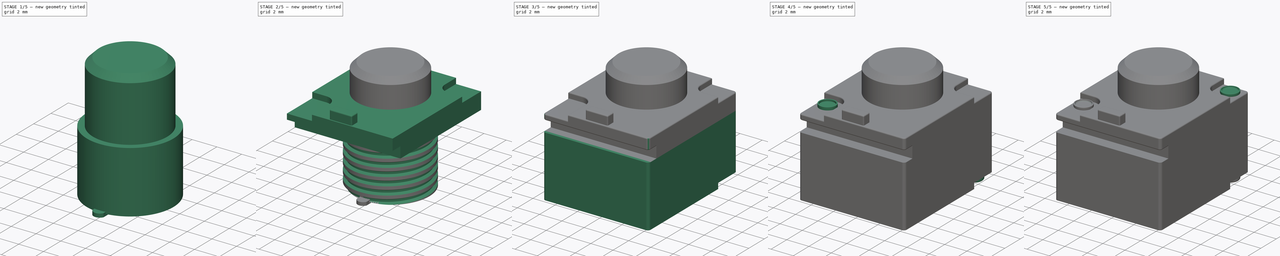
[diagram: build sequence overview — one tinted view per stage of 5, left to right]
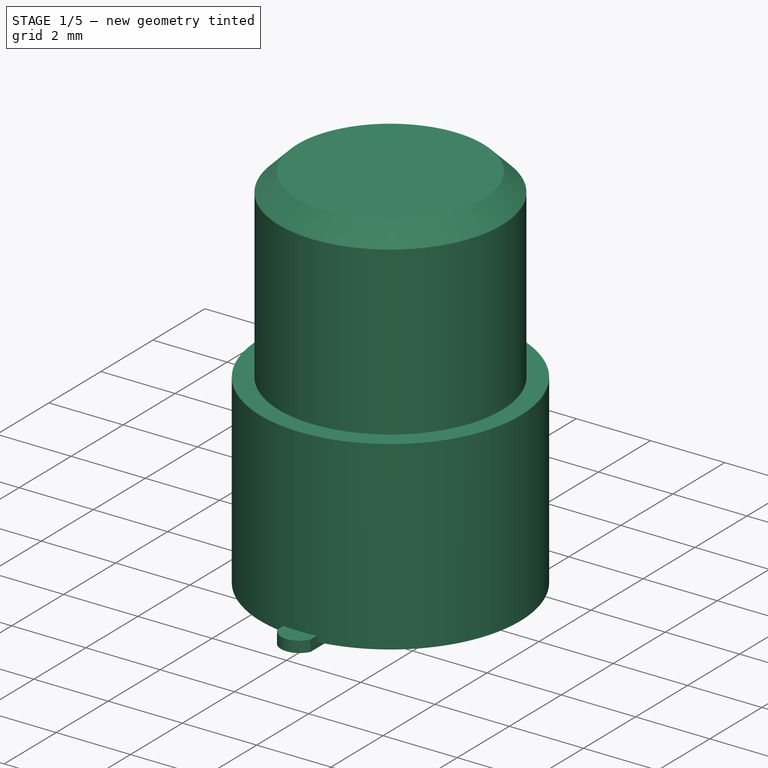
[diagram: stage 1 of 5 — iso view after this stage's code; geometry added in this stage tinted green]
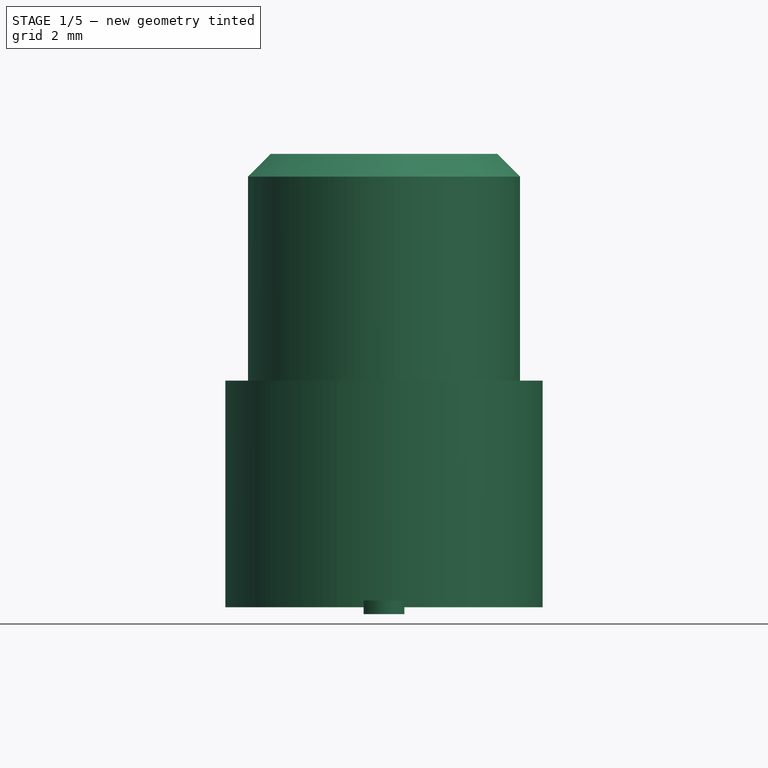
[diagram: stage 1 of 5 — front view after this stage's code; geometry added in this stage tinted green]
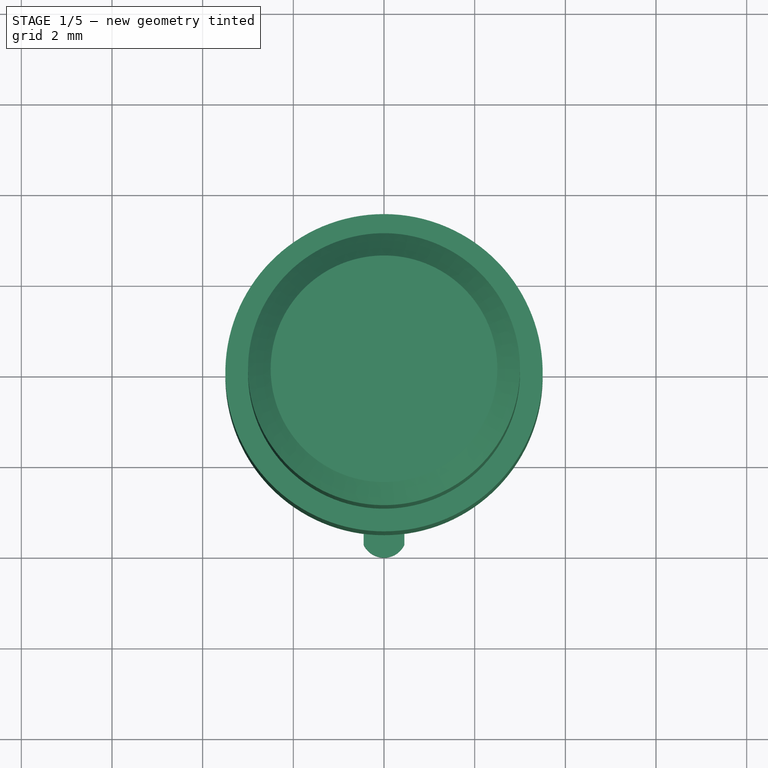
[diagram: stage 1 of 5 — top view after this stage's code; geometry added in this stage tinted green]
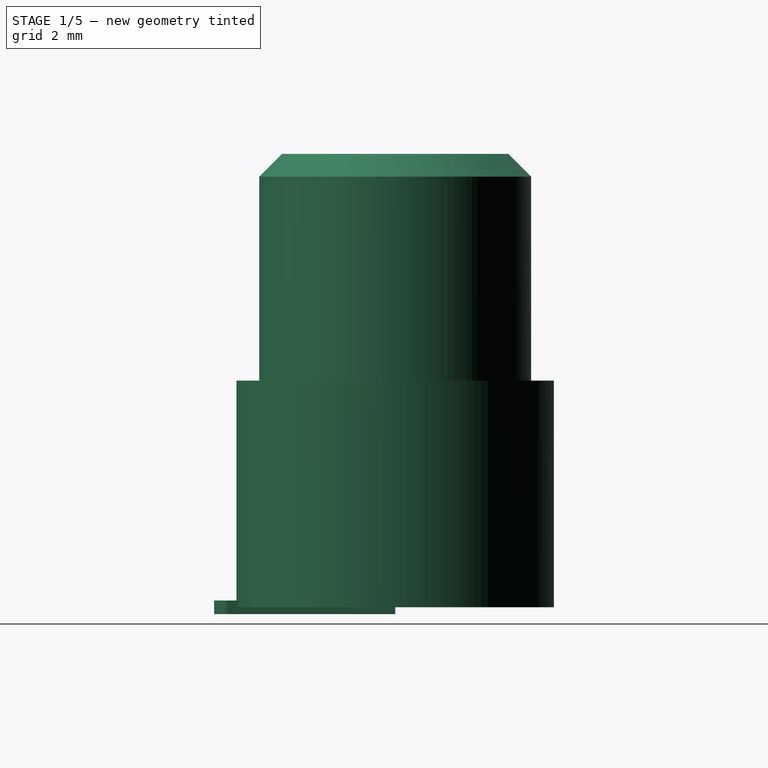
[diagram: stage 1 of 5 — right view after this stage's code; geometry added in this stage tinted green]
FCSTD DOCUMENT  (FreeCAD 0.19R16699 (Git))
Label: RD901F-20-15R
License: All rights reserved
LicenseURL: http://en.wikipedia.org/wiki/All_rights_reserved
objects: Sketcher::SketchObject×17, PartDesign::Pad×13, PartDesign::Body×13, PartDesign::Fillet×11, App::Part×4, PartDesign::Pocket×3, PartDesign::Thickness×2, Part::Helix×1, PartDesign::ShapeBinder×1, PartDesign::SubtractivePipe×1, PartDesign::Chamfer×1
note: 80 computed .brp shape members not serialized (recipe doc carries the construction recipe); baked Part::Feature solids carry a one-line shape summary decoded from their .brp

FEATURE [PartDesign::Body] Body008  label="Tab"
  Group = -> [Sketch014,Pad007,Fillet010]
  Origin = -> Origin008
  Tip = -> Fillet010
FEATURE [App::Part] Part  label="RD901F_Body_z=7.5"
  Group = -> [Body,Body001,Body002,Body004,Body005,Body006,Body007,Body008]
  Origin = -> Origin009
FEATURE [Sketcher::SketchObject] Sketch015
  AttachmentOffset = pos=(0,0,0) rot=(0,0,1;1.5708rad)
  MapMode = 5
  Placement = pos=(0,0,0) rot=(0,0,1;1.5708rad)
  Support = -> [XY_Plane010]
  sketch-geometry (1):
    g0: Circle CenterX=0 CenterY=0 CenterZ=0 NormalX=0 NormalY=0 NormalZ=1 AngleXU=0 Radius=3.5
  constraints (2):
    c: Coincident(g0,g-1)
    c: Radius(g0) = 3.5
FEATURE [PartDesign::Pad] Pad008
  Length = 5
  Length2 = 100
  Profile = -> Sketch015
  Type = 0
FEATURE [PartDesign::Body] Body009  label="Bushing_M7x0.75x5mm"
  Group = -> [Sketch015,Pad008,Sketch001,SubtractivePipe,ReferenceHelix]
  Origin = -> Origin010
  Placement = pos=(0,0,7.5) rot=(0,0,1;0rad)
  Tip = -> SubtractivePipe
FEATURE [App::Part] Part001  label="Bushing_M7x0.75x5"
  Group = -> [Body009,Helix]
  Origin = -> Origin011
FEATURE [Sketcher::SketchObject] Sketch016
  MapMode = 5
  Support = -> [XY_Plane012]
  sketch-geometry (1):
    g0: Circle CenterX=0 CenterY=0 CenterZ=0 NormalX=0 NormalY=0 NormalZ=1 AngleXU=0 Radius=3
  constraints (2):
    c: Coincident(g0,g-1)
    c: Radius(g0) = 3
FEATURE [PartDesign::Pad] Pad009
  Length = 10
  Length2 = 100
  Profile = -> Sketch016
  Type = 0
FEATURE [PartDesign::Chamfer] Chamfer
  Base = -> Pad009 [Edge3]
  BaseFeature = -> Pad009
  Size = 0.5
FEATURE [PartDesign::Body] Body010  label="RD901F_Shaft_15R"
  Group = -> [Sketch016,Pad009,Chamfer]
  Origin = -> Origin012
  Placement = pos=(0,0,12.5) rot=(0,0,1;0rad)
  Tip = -> Chamfer
FEATURE [App::Part] Part002  label="Shaft_Type_15R"
  Group = -> [Body010]
  Origin = -> Origin013
FEATURE [Sketcher::SketchObject] Sketch017
  MapMode = 5
  Support = -> [XY_Plane014]
  sketch-geometry (7):
    g0: ArcOfCircle CenterX=0 CenterY=-3.49746 CenterZ=0 NormalX=0 NormalY=0 NormalZ=1 AngleXU=0 Radius=0.497458 StartAngle=3.58195 EndAngle=5.84283
    g1: LineSegment StartX=-0.45 StartY=-3.70951 StartZ=0 EndX=-0.45 EndY=0 EndZ=0
    g2: LineSegment StartX=0.45 StartY=-3.70951 StartZ=0 EndX=0.45 EndY=0 EndZ=0
    g3: LineSegment StartX=-0.45 StartY=0 StartZ=0 EndX=0.45 EndY=0 EndZ=0
    g4: LineSegment [constr] StartX=0.45 StartY=-3.70951 StartZ=0 EndX=-0.45 EndY=-3.70951 EndZ=0
    g5: GeomPoint X=0 Y=-3 Z=0
    g6: LineSegment [constr] StartX=0 StartY=-3 StartZ=0 EndX=0 EndY=-3.49746 EndZ=0
  constraints (18):
    c: PointOnObject(g0,g-2)
    c: Coincident(g1,g0)
    c: PointOnObject(g1,g-1)
    c: Vertical(g1)
    c: Coincident(g2,g0)
    c: PointOnObject(g2,g-1)
    c: Vertical(g2)
    c: Coincident(g3,g1)
    c: Coincident(g3,g2)
    c: Coincident(g4,g0)
    c: Coincident(g4,g0)
    c: Horizontal(g4)
    c: DistanceX(g3,g3) = 0.9
    c: PointOnObject(g5,g0)
    c: Coincident(g6,g5)
    c: Coincident(g6,g0)
    c: PointOnObject(g5,g-2)
    c: DistanceY(g5,g-1) = 3
FEATURE [PartDesign::Pad] Pad010
  Length = 0.3
  Length2 = 100
  Midplane = true
  Profile = -> Sketch017
  Type = 0
FEATURE [PartDesign::Body] Body011  label="RD901F_Terminals_20_2"
  Group = -> [Sketch017,Pad010]
  Origin = -> Origin014
  Tip = -> Pad010
FEATURE [Sketcher::SketchObject] Sketch018
  MapMode = 5
  Support = -> [XY_Plane015]
  sketch-geometry (7):
    g0: ArcOfCircle CenterX=0 CenterY=-3.49746 CenterZ=0 NormalX=0 NormalY=0 NormalZ=1 AngleXU=0 Radius=0.497458 StartAngle=3.58195 EndAngle=5.84283
    g1: LineSegment StartX=-0.45 StartY=-3.70951 StartZ=0 EndX=-0.45 EndY=0 EndZ=0
    g2: LineSegment StartX=0.45 StartY=-3.70951 StartZ=0 EndX=0.45 EndY=0 EndZ=0
    g3: LineSegment StartX=-0.45 StartY=0 StartZ=0 EndX=0.45 EndY=0 EndZ=0
    g4: LineSegment [constr] StartX=0.45 StartY=-3.70951 StartZ=0 EndX=-0.45 EndY=-3.70951 EndZ=0
    g5: GeomPoint X=0 Y=-3 Z=0
    g6: LineSegment [constr] StartX=0 StartY=-3 StartZ=0 EndX=0 EndY=-3.49746 EndZ=0
  constraints (18):
    c: PointOnObject(g0,g-2)
    c: Coincident(g1,g0)
    c: PointOnObject(g1,g-1)
    c: Vertical(g1)
    c: Coincident(g2,g0)
    c: PointOnObject(g2,g-1)
    c: Vertical(g2)
    c: Coincident(g3,g1)
    c: Coincident(g3,g2)
    c: Coincident(g4,g0)
    c: Coincident(g4,g0)
    c: Horizontal(g4)
    c: DistanceX(g3,g3) = 0.9
    c: PointOnObject(g5,g0)
    c: Coincident(g6,g5)
    c: Coincident(g6,g0)
    c: PointOnObject(g5,g-2)
    c: DistanceY(g5,g-1) = 3
FEATURE [PartDesign::Pad] Pad011
  Length = 0.3
  Length2 = 100
  Midplane = true
  Profile = -> Sketch018
  Type = 0
FEATURE [PartDesign::Body] Body012  label="RD901F_Terminals_20_1"
  Group = -> [Sketch018,Pad011]
  Origin = -> Origin015
  Placement = pos=(-2.5,0,0) rot=(0,0,1;0rad)
  Tip = -> Pad011
FEATURE [Sketcher::SketchObject] Sketch002
  MapMode = 5
  Support = -> [XY_Plane016]
  sketch-geometry (7):
    g0: ArcOfCircle CenterX=0 CenterY=-3.49746 CenterZ=0 NormalX=0 NormalY=0 NormalZ=1 AngleXU=0 Radius=0.497458 StartAngle=3.58195 EndAngle=5.84283
    g1: LineSegment StartX=-0.45 StartY=-3.70951 StartZ=0 EndX=-0.45 EndY=0 EndZ=0
    g2: LineSegment StartX=0.45 StartY=-3.70951 StartZ=0 EndX=0.45 EndY=0 EndZ=0
    g3: LineSegment StartX=-0.45 StartY=0 StartZ=0 EndX=0.45 EndY=0 EndZ=0
    g4: LineSegment [constr] StartX=0.45 StartY=-3.70951 StartZ=0 EndX=-0.45 EndY=-3.70951 EndZ=0
    g5: GeomPoint X=0 Y=-3 Z=0
    g6: LineSegment [constr] StartX=0 StartY=-3 StartZ=0 EndX=0 EndY=-3.49746 EndZ=0
  constraints (18):
    c: PointOnObject(g0,g-2)
    c: Coincident(g1,g0)
    c: PointOnObject(g1,g-1)
    c: Vertical(g1)
    c: Coincident(g2,g0)
    c: PointOnObject(g2,g-1)
    c: Vertical(g2)
    c: Coincident(g3,g1)
    c: Coincident(g3,g2)
    c: Coincident(g4,g0)
    c: Coincident(g4,g0)
    c: Horizontal(g4)
    c: DistanceX(g3,g3) = 0.9
    c: PointOnObject(g5,g0)
    c: Coincident(g6,g5)
    c: Coincident(g6,g0)
    c: PointOnObject(g5,g-2)
    c: DistanceY(g5,g-1) = 3
FEATURE [PartDesign::Pad] Pad012
  Length = 0.3
  Length2 = 100
  Midplane = true
  Profile = -> Sketch002
  Type = 0
FEATURE [PartDesign::Body] Body013  label="RD901F_Terminals_20_3"
  Group = -> [Sketch002,Pad012]
  Origin = -> Origin016
  Placement = pos=(2.5,0,0) rot=(0,0,1;0rad)
  Tip = -> Pad012
FEATURE [App::Part] Part003  label="RD901F_Terminals_20_3x"
  Group = -> [Body013,Body012,Body011]
  Origin = -> Origin003
  Placement = pos=(0,-6.5,2.25) rot=(0,0,1;0rad)
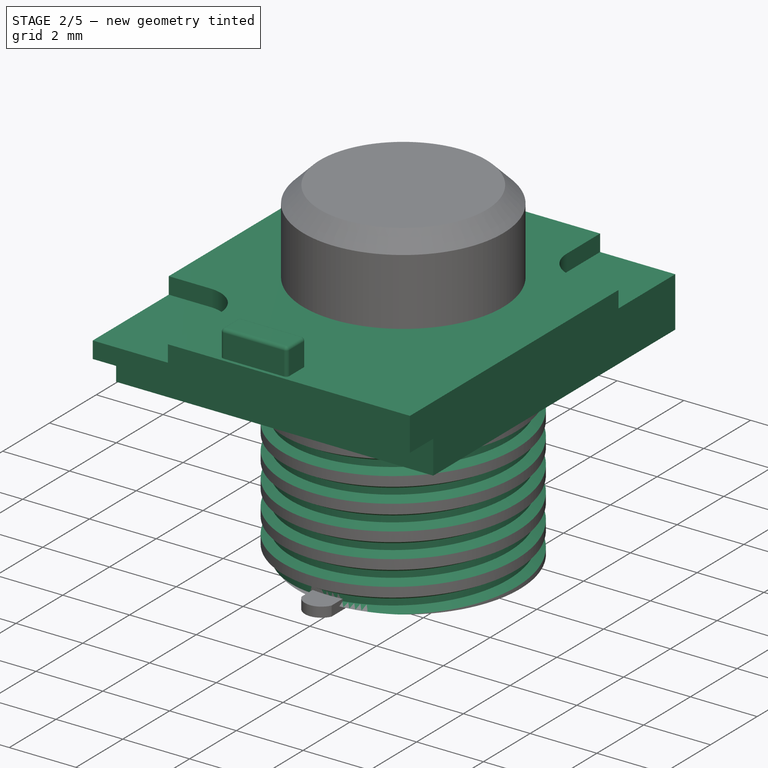
[diagram: stage 2 of 5 — iso view after this stage's code; geometry added in this stage tinted green]
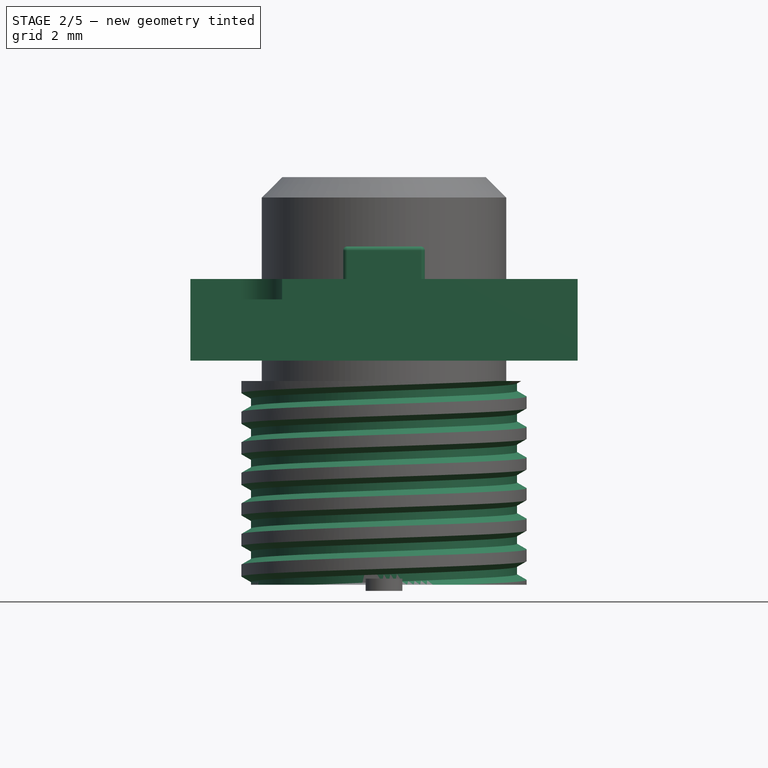
[diagram: stage 2 of 5 — front view after this stage's code; geometry added in this stage tinted green]
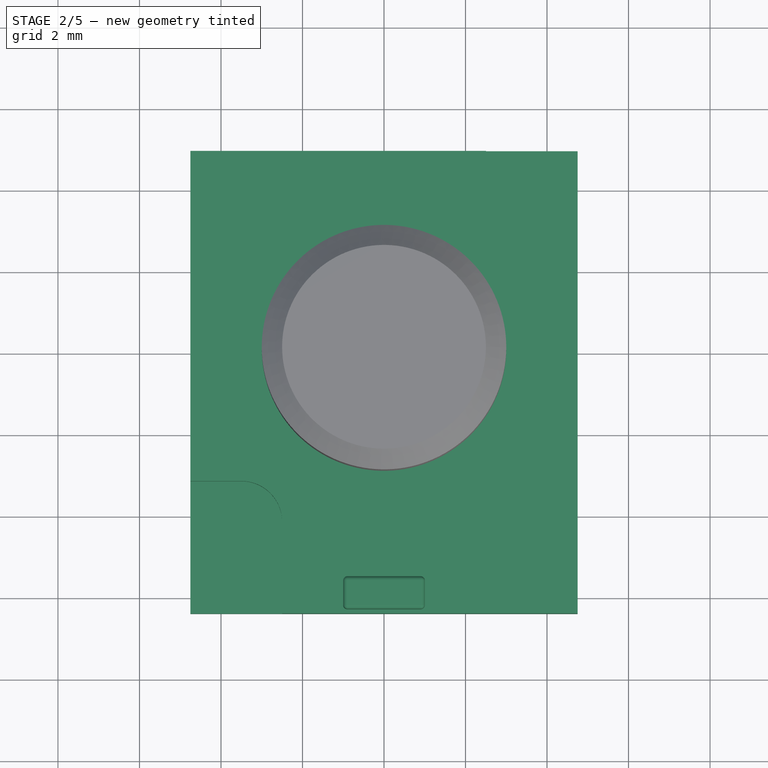
[diagram: stage 2 of 5 — top view after this stage's code; geometry added in this stage tinted green]
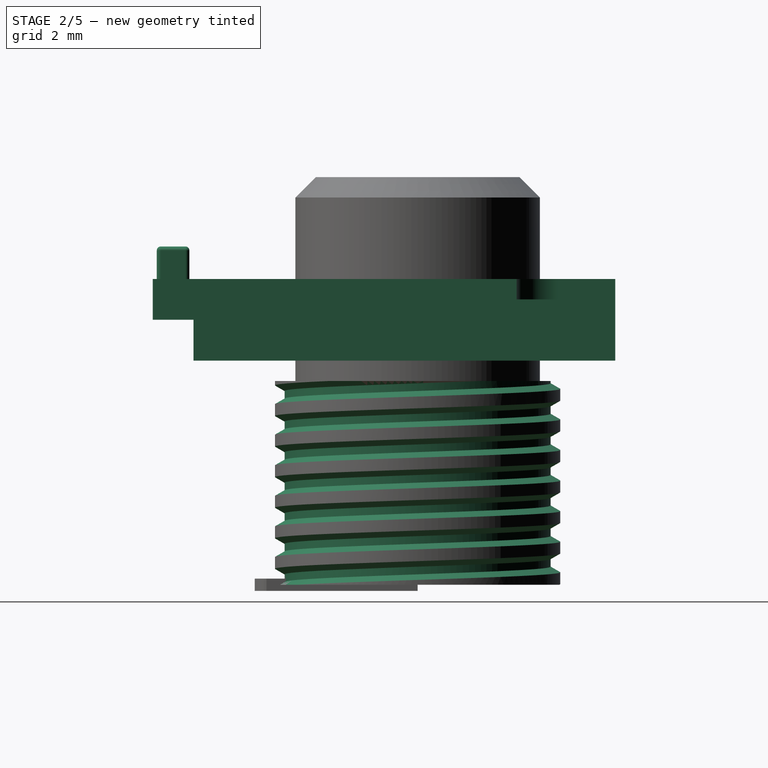
[diagram: stage 2 of 5 — right view after this stage's code; geometry added in this stage tinted green]
FEATURE [Sketcher::SketchObject] Sketch005
  AttachmentOffset = pos=(0,0,5.5) rot=(0,0,1;0rad)
  MapMode = 5
  Placement = pos=(0,0,5.5) rot=(0,0,1;0rad)
  Support = -> [XY_Plane002]
  expr: Constraints[10] = Sketch.Constraints[10]
  expr: Constraints[9] = Sketch.Constraints[9]
  expr: Constraints[8] = Sketch.Constraints[8]
  sketch-geometry (4):
    g0: LineSegment StartX=-4.75 StartY=4.85 StartZ=0 EndX=4.75 EndY=4.85 EndZ=0
    g1: LineSegment StartX=4.75 StartY=4.85 StartZ=0 EndX=4.75 EndY=-6.5 EndZ=0
    g2: LineSegment StartX=4.75 StartY=-6.5 StartZ=0 EndX=-4.75 EndY=-6.5 EndZ=0
    g3: LineSegment StartX=-4.75 StartY=-6.5 StartZ=0 EndX=-4.75 EndY=4.85 EndZ=0
  constraints (11):
    c: Coincident(g0,g1)
    c: Coincident(g1,g2)
    c: Coincident(g2,g3)
    c: Coincident(g3,g0)
    c: Horizontal(g2)
    c: Vertical(g1)
    c: Vertical(g3)
    c: Symmetric(g0,g0,g-2)
    c: DistanceX(g0,g0) = 9.5
    c: DistanceY(g-1,g0) = 4.85
    c: DistanceY(g1,g-1) = 6.5
FEATURE [PartDesign::Pad] Pad002
  Length = 2
  Length2 = 100
  Profile = -> Sketch005
  Type = 0
FEATURE [Sketcher::SketchObject] Sketch006
  AttachmentOffset = pos=(0,5.5,6.5) rot=(0,0,1;0rad)
  MapMode = 5
  Placement = pos=(0,-6.5,5.5) rot=(1,0,0;1.5708rad)
  Support = -> [XZ_Plane002]
  sketch-geometry (4):
    g0: LineSegment StartX=-4.75 StartY=1 StartZ=0 EndX=4.75 EndY=1 EndZ=0
    g1: LineSegment StartX=4.75 StartY=1 StartZ=0 EndX=4.75 EndY=0 EndZ=0
    g2: LineSegment StartX=4.75 StartY=0 StartZ=0 EndX=-4.75 EndY=0 EndZ=0
    g3: LineSegment StartX=-4.75 StartY=0 StartZ=0 EndX=-4.75 EndY=1 EndZ=0
  constraints (11):
    c: Coincident(g0,g1)
    c: Coincident(g1,g2)
    c: Coincident(g2,g3)
    c: Coincident(g3,g0)
    c: Horizontal(g2)
    c: Vertical(g1)
    c: Vertical(g3)
    c: Symmetric(g0,g0,g-2)
    c: DistanceX(g0,g0) = 9.5
    c: DistanceY(g1,g1) = 1
    c: PointOnObject(g2,g-1)
FEATURE [PartDesign::Pocket] Pocket
  BaseFeature = -> Pad002
  Length = 1
  Length2 = 100
  Profile = -> Sketch006
  Type = 0
FEATURE [Sketcher::SketchObject] Sketch008
  AttachmentOffset = pos=(0,0,7.5) rot=(0,0,1;0rad)
  MapMode = 5
  Placement = pos=(0,0,7.5) rot=(0,0,1;0rad)
  Support = -> [XY_Plane002]
  expr: Constraints[10] = Sketch.Constraints[10]
  expr: Constraints[9] = Sketch.Constraints[9]
  expr: Constraints[8] = Sketch.Constraints[8]
  sketch-geometry (14):
    g0: LineSegment [constr] StartX=-4.75 StartY=4.85 StartZ=0 EndX=4.75 EndY=4.85 EndZ=0
    g1: LineSegment [constr] StartX=4.75 StartY=4.85 StartZ=0 EndX=4.75 EndY=-6.5 EndZ=0
    g2: LineSegment [constr] StartX=4.75 StartY=-6.5 StartZ=0 EndX=-4.75 EndY=-6.5 EndZ=0
    g3: LineSegment [constr] StartX=-4.75 StartY=-6.5 StartZ=0 EndX=-4.75 EndY=4.85 EndZ=0
    g4: LineSegment StartX=4.75 StartY=4.85 StartZ=0 EndX=2.5 EndY=4.85 EndZ=0
    g5: LineSegment StartX=2.5 StartY=4.85 StartZ=0 EndX=2.5 EndY=3.425 EndZ=0
    g6: LineSegment StartX=3.5 StartY=2.425 StartZ=0 EndX=4.75 EndY=2.425 EndZ=0
    g7: LineSegment StartX=4.75 StartY=2.425 StartZ=0 EndX=4.75 EndY=4.85 EndZ=0
    g8: LineSegment StartX=-4.75 StartY=-6.5 StartZ=0 EndX=-2.5 EndY=-6.5 EndZ=0
    g9: LineSegment StartX=-2.5 StartY=-6.5 StartZ=0 EndX=-2.5 EndY=-4.25 EndZ=0
    g10: LineSegment StartX=-3.5 StartY=-3.25 StartZ=0 EndX=-4.75 EndY=-3.25 EndZ=0
    g11: LineSegment StartX=-4.75 StartY=-3.25 StartZ=0 EndX=-4.75 EndY=-6.5 EndZ=0
    g12: ArcOfCircle CenterX=3.5 CenterY=3.425 CenterZ=0 NormalX=0 NormalY=0 NormalZ=1 AngleXU=0 Radius=1 StartAngle=3.14159 EndAngle=4.71239
    g13: ArcOfCircle CenterX=-3.5 CenterY=-4.25 CenterZ=0 NormalX=0 NormalY=0 NormalZ=1 AngleXU=0 Radius=1 StartAngle=0 EndAngle=1.5708
  constraints (37):
    c: Coincident(g0,g1)
    c: Coincident(g1,g2)
    c: Coincident(g2,g3)
    c: Coincident(g3,g0)
    c: Horizontal(g2)
    c: Vertical(g1)
    c: Vertical(g3)
    c: Symmetric(g0,g0,g-2)
    c: DistanceX(g0,g0) = 9.5
    c: DistanceY(g-1,g0) = 4.85
    c: DistanceY(g1,g-1) = 6.5
    c: Coincident(g4,g5)
    c: Coincident(g6,g7)
    c: Coincident(g7,g4)
    c: Horizontal(g4)
    c: Horizontal(g6)
    c: Vertical(g5)
    c: Vertical(g7)
    c: Coincident(g4,g0)
    c: Coincident(g8,g9)
    c: Coincident(g10,g11)
    c: Coincident(g11,g8)
    c: Horizontal(g8)
    c: Horizontal(g10)
    c: Vertical(g9)
    c: Vertical(g11)
    c: Coincident(g8,g2)
    c: DistanceX(g4,g4) = 2.25
    c: DistanceY(g11,g11) = 3.25
    c: DistanceY(g7,g7) = 2.425
    c: Tangent(g5,g12) = -1.5708
    c: Tangent(g6,g12) = -1.5708
    c: Tangent(g9,g13) = -1.5708
    c: Tangent(g10,g13) = -1.5708
    c: DistanceX(g13,g9) = 1
    c: DistanceX(g8,g8) = 2.25
    c: DistanceX(g5,g12) = 1
FEATURE [PartDesign::Pocket] Pocket002
  BaseFeature = -> Pocket
  Length = 0.5
  Length2 = 100
  Profile = -> Sketch008
  Type = 0
FEATURE [PartDesign::Body] Body007  label="Rivet_Bot_2"
  Group = -> [Sketch013,Pad006,Fillet005]
  Origin = -> Origin007
  Tip = -> Fillet005
FEATURE [Sketcher::SketchObject] Sketch014
  AttachmentOffset = pos=(0,0,7.5) rot=(0,0,1;0rad)
  MapMode = 5
  Placement = pos=(0,0,7.5) rot=(0,0,1;0rad)
  Support = -> [XY_Plane008]
  sketch-geometry (8):
    g0: LineSegment StartX=-1 StartY=-5.6 StartZ=0 EndX=1 EndY=-5.6 EndZ=0
    g1: LineSegment StartX=1 StartY=-5.6 StartZ=0 EndX=1 EndY=-6.4 EndZ=0
    g2: LineSegment StartX=1 StartY=-6.4 StartZ=0 EndX=-1 EndY=-6.4 EndZ=0
    g3: LineSegment StartX=-1 StartY=-6.4 StartZ=0 EndX=-1 EndY=-5.6 EndZ=0
    g4: LineSegment [constr] StartX=1 StartY=-5.6 StartZ=0 EndX=-1 EndY=-6.4 EndZ=0
    g5: LineSegment [constr] StartX=-1 StartY=-5.6 StartZ=0 EndX=1 EndY=-6.4 EndZ=0
    g6: GeomPoint X=2e-16 Y=-6 Z=0
    g7: GeomPoint X=2e-16 Y=-6 Z=0
  constraints (18):
    c: Coincident(g0,g1)
    c: Coincident(g1,g2)
    c: Coincident(g2,g3)
    c: Coincident(g3,g0)
    c: Horizontal(g2)
    c: Vertical(g1)
    c: Vertical(g3)
    c: Symmetric(g0,g0,g-2)
    c: DistanceX(g2,g2) = 2
    c: DistanceY(g1,g1) = 0.8
    c: Coincident(g4,g0)
    c: Coincident(g4,g2)
    c: Coincident(g5,g0)
    c: Coincident(g5,g1)
    c: PointOnObject(g6,g5)
    c: PointOnObject(g7,g4)
    c: Coincident(g6,g7)
    c: DistanceY(g6,g-1) = 6
FEATURE [PartDesign::Pad] Pad007
  Length = 0.8
  Length2 = 100
  Profile = -> Sketch014
  Type = 0
FEATURE [PartDesign::Body] Body002  label="Body_3_z=2"
  Group = -> [Sketch005,Pad002,Sketch006,Pocket,Sketch008,Pocket002,Fillet008,Fillet009]
  Origin = -> Origin002
  Tip = -> Fillet009
FEATURE [PartDesign::Fillet] Fillet010
  Base = -> Pad007 [Edge2,Edge7,Edge5,Edge10,Edge4,Edge8,Edge12,Edge1]
  BaseFeature = -> Pad007
  Radius = 0.1
FEATURE [Part::Helix] Helix
  Angle = 0
  AttacherType = Attacher::AttachEngine3D
  Height = 5.5
  LocalCoord = 0
  Pitch = 0.75
  Radius = 3.5
  Style = 1
FEATURE [Sketcher::SketchObject] Sketch001
  MapMode = 5
  Placement = pos=(0,0,0) rot=(0.57735,0.57735,0.57735;2.0944rad)
  Support = -> [YZ_Plane010]
  sketch-geometry (4):
    g0: LineSegment StartX=3.26326 StartY=-0.12074 StartZ=0 EndX=3.54085 EndY=0.039529 EndZ=0
    g1: LineSegment StartX=3.54085 StartY=0.039529 StartZ=0 EndX=3.54085 EndY=-0.468509 EndZ=0
    g2: LineSegment StartX=3.54085 StartY=-0.468509 StartZ=0 EndX=3.26326 EndY=-0.30824 EndZ=0
    g3: LineSegment StartX=3.26326 StartY=-0.30824 StartZ=0 EndX=3.26326 EndY=-0.12074 EndZ=0
  constraints (9):
    c: Coincident(g0,g1)
    c: Coincident(g1,g2)
    c: Coincident(g2,g3)
    c: Coincident(g3,g0)
    c: Vertical(g1)
    c: Vertical(g3)
    c: Angle(g2,g0) = 1.0472
    c: DistanceY(g3,g3) = 0.1875
    c: Equal(g0,g2)
FEATURE [PartDesign::ShapeBinder] ReferenceHelix
  Support = -> [Helix]
  TraceSupport = false
FEATURE [PartDesign::SubtractivePipe] SubtractivePipe
  AuxilleryCurvelinear = true
  AuxillerySpineTangent = false
  BaseFeature = -> Pad008
  Binormal = (0,0,0)
  Mode = 2
  Profile = -> Sketch001
  Spine = -> ReferenceHelix
  SpineTangent = false
  Transformation = 0
  Transition = 0
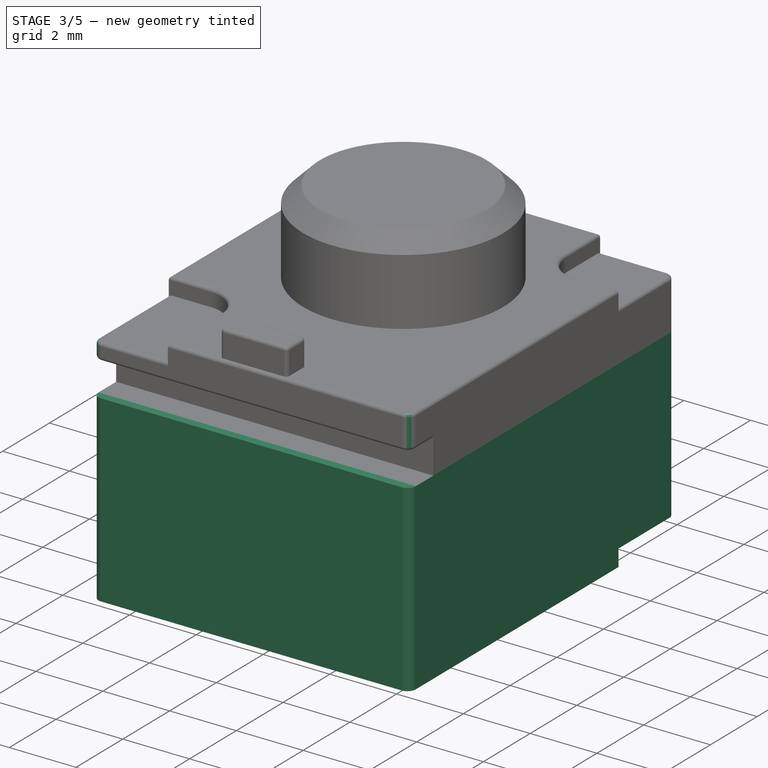
[diagram: stage 3 of 5 — iso view after this stage's code; geometry added in this stage tinted green]
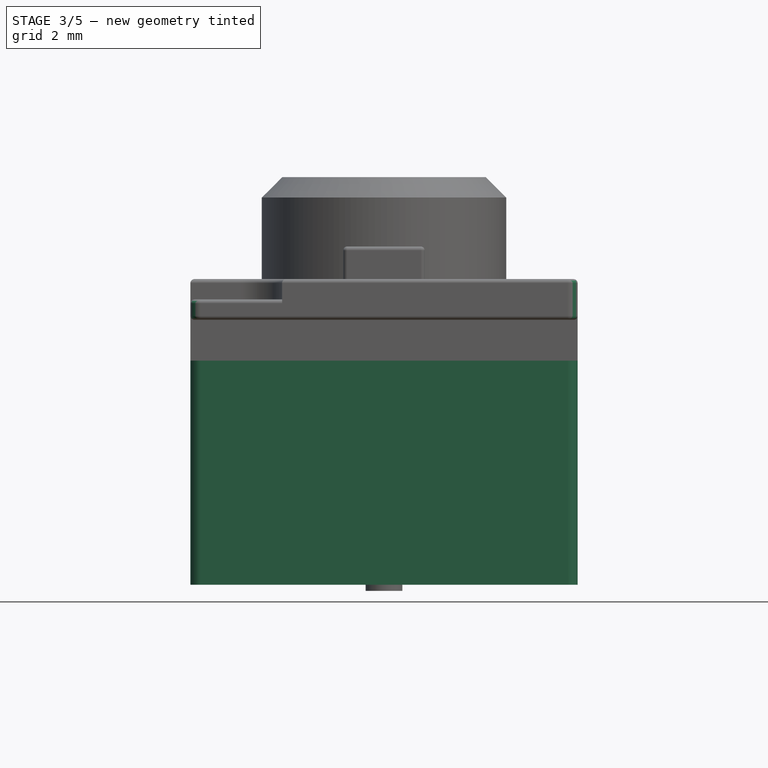
[diagram: stage 3 of 5 — front view after this stage's code; geometry added in this stage tinted green]
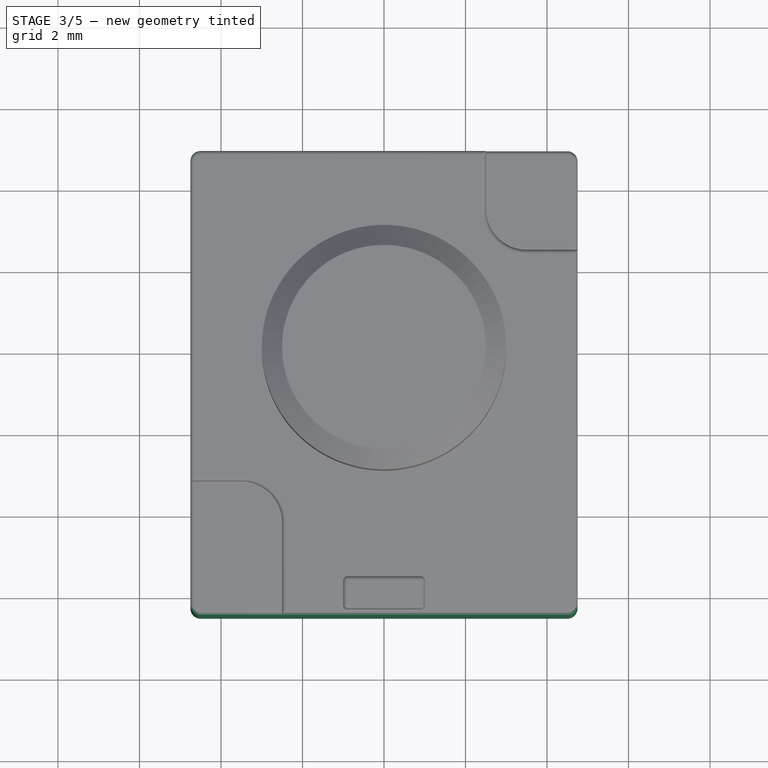
[diagram: stage 3 of 5 — top view after this stage's code; geometry added in this stage tinted green]
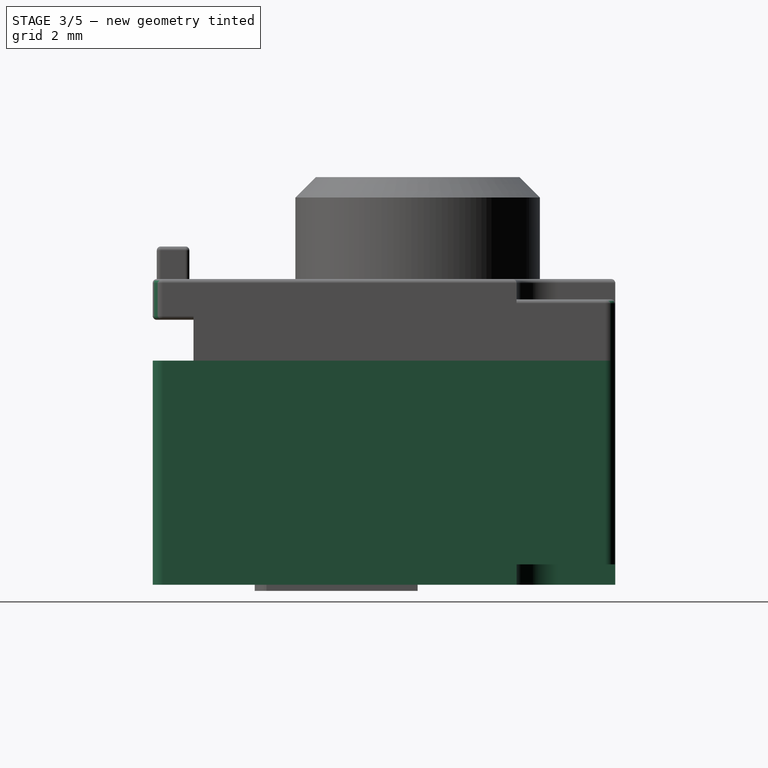
[diagram: stage 3 of 5 — right view after this stage's code; geometry added in this stage tinted green]
FEATURE [Sketcher::SketchObject] Sketch
  MapMode = 5
  Support = -> [XY_Plane]
  sketch-geometry (4):
    g0: LineSegment StartX=-4.75 StartY=4.85 StartZ=0 EndX=4.75 EndY=4.85 EndZ=0
    g1: LineSegment StartX=4.75 StartY=4.85 StartZ=0 EndX=4.75 EndY=-6.5 EndZ=0
    g2: LineSegment StartX=4.75 StartY=-6.5 StartZ=0 EndX=-4.75 EndY=-6.5 EndZ=0
    g3: LineSegment StartX=-4.75 StartY=-6.5 StartZ=0 EndX=-4.75 EndY=4.85 EndZ=0
  constraints (11):
    c: Coincident(g0,g1)
    c: Coincident(g1,g2)
    c: Coincident(g2,g3)
    c: Coincident(g3,g0)
    c: Horizontal(g2)
    c: Vertical(g1)
    c: Vertical(g3)
    c: Symmetric(g0,g0,g-2)
    c: DistanceX(g0,g0) = 9.5
    c: DistanceY(g-1,g0) = 4.85
    c: DistanceY(g1,g-1) = 6.5
FEATURE [PartDesign::Pad] Pad
  Length = 1.5
  Length2 = 100
  Profile = -> Sketch
  Type = 0
FEATURE [Sketcher::SketchObject] Sketch004
  AttachmentOffset = pos=(0,0,1.5) rot=(0,0,1;0rad)
  MapMode = 5
  Placement = pos=(0,0,1.5) rot=(0,0,1;0rad)
  Support = -> [XY_Plane001]
  expr: Constraints[10] = Sketch.Constraints[10]
  expr: Constraints[9] = Sketch.Constraints[9]
  expr: Constraints[8] = Sketch.Constraints[8]
  sketch-geometry (4):
    g0: LineSegment StartX=-4.75 StartY=4.85 StartZ=0 EndX=4.75 EndY=4.85 EndZ=0
    g1: LineSegment StartX=4.75 StartY=4.85 StartZ=0 EndX=4.75 EndY=-6.5 EndZ=0
    g2: LineSegment StartX=4.75 StartY=-6.5 StartZ=0 EndX=-4.75 EndY=-6.5 EndZ=0
    g3: LineSegment StartX=-4.75 StartY=-6.5 StartZ=0 EndX=-4.75 EndY=4.85 EndZ=0
  constraints (11):
    c: Coincident(g0,g1)
    c: Coincident(g1,g2)
    c: Coincident(g2,g3)
    c: Coincident(g3,g0)
    c: Horizontal(g2)
    c: Vertical(g1)
    c: Vertical(g3)
    c: Symmetric(g0,g0,g-2)
    c: DistanceX(g0,g0) = 9.5
    c: DistanceY(g-1,g0) = 4.85
    c: DistanceY(g1,g-1) = 6.5
FEATURE [PartDesign::Pad] Pad001
  Length = 4
  Length2 = 100
  Profile = -> Sketch004
  Type = 0
FEATURE [Sketcher::SketchObject] Sketch009
  MapMode = 5
  Support = -> [XY_Plane]
  expr: Constraints[22] = Sketch008.Constraints[27]
  expr: Constraints[9] = Sketch008.Constraints[9]
  expr: Constraints[27] = Sketch008.Constraints[36]
  expr: Constraints[23] = Sketch008.Constraints[29]
  expr: Constraints[10] = Sketch008.Constraints[10]
  expr: Constraints[8] = Sketch008.Constraints[8]
  sketch-geometry (14):
    g0: LineSegment [constr] StartX=-4.75 StartY=4.85 StartZ=0 EndX=4.75 EndY=4.85 EndZ=0
    g1: LineSegment [constr] StartX=4.75 StartY=4.85 StartZ=0 EndX=4.75 EndY=-6.5 EndZ=0
    g2: LineSegment [constr] StartX=4.75 StartY=-6.5 StartZ=0 EndX=-4.75 EndY=-6.5 EndZ=0
    g3: LineSegment [constr] StartX=-4.75 StartY=-6.5 StartZ=0 EndX=-4.75 EndY=4.85 EndZ=0
    g4: LineSegment StartX=4.75 StartY=4.85 StartZ=0 EndX=2.5 EndY=4.85 EndZ=0
    g5: LineSegment StartX=2.5 StartY=4.85 StartZ=0 EndX=2.5 EndY=3.425 EndZ=0
    g6: LineSegment StartX=3.5 StartY=2.425 StartZ=0 EndX=4.75 EndY=2.425 EndZ=0
    g7: LineSegment StartX=4.75 StartY=2.425 StartZ=0 EndX=4.75 EndY=4.85 EndZ=0
    g8: LineSegment StartX=-3.5 StartY=-3.25 StartZ=0 EndX=-4.75 EndY=-3.25 EndZ=0
    g9: LineSegment StartX=-4.75 StartY=-3.25 StartZ=0 EndX=-4.75 EndY=-5.25 EndZ=0
    g10: ArcOfCircle CenterX=3.5 CenterY=3.425 CenterZ=0 NormalX=0 NormalY=0 NormalZ=1 AngleXU=0 Radius=1 StartAngle=3.14159 EndAngle=4.71239
    g11: ArcOfCircle CenterX=-3.5 CenterY=-4.25 CenterZ=0 NormalX=0 NormalY=0 NormalZ=1 AngleXU=0 Radius=1 StartAngle=0 EndAngle=1.5708
    g12: ArcOfCircle CenterX=-3.5 CenterY=-4.25 CenterZ=0 NormalX=0 NormalY=0 NormalZ=1 AngleXU=0 Radius=1 StartAngle=4.71239 EndAngle=6.28319
    g13: LineSegment StartX=-3.5 StartY=-5.25 StartZ=0 EndX=-4.75 EndY=-5.25 EndZ=0
  constraints (39):
    c: Coincident(g0,g1)
    c: Coincident(g1,g2)
    c: Coincident(g2,g3)
    c: Coincident(g3,g0)
    c: Horizontal(g2)
    c: Vertical(g1)
    c: Vertical(g3)
    c: Symmetric(g0,g0,g-2)
    c: DistanceX(g0,g0) = 9.5
    c: DistanceY(g-1,g0) = 4.85
    c: DistanceY(g1,g-1) = 6.5
    c: Coincident(g4,g5)
    c: Coincident(g6,g7)
    c: Coincident(g7,g4)
    c: Horizontal(g4)
    c: Horizontal(g6)
    c: Vertical(g5)
    c: Vertical(g7)
    c: Coincident(g4,g0)
    c: Coincident(g8,g9)
    c: Horizontal(g8)
    c: Vertical(g9)
    c: DistanceX(g4,g4) = 2.25
    c: DistanceY(g7,g7) = 2.425
    c: Tangent(g5,g10) = -1.5708
    c: Tangent(g6,g10) = -1.5708
    c: Tangent(g8,g11) = -1.5708
    c: DistanceX(g5,g10) = 1
    c: Coincident(g12,g11)
    c: Coincident(g12,g11)
    c: Vertical(g12,g8)
    c: PointOnObject(g9,g3)
    c: Coincident(g13,g12)
    c: Coincident(g13,g9)
    c: Horizontal(g13)
    c: Horizontal(g11,g11)
    c: DistanceY(g2,g8) = 3.25
    c: DistanceY(g11,g8) = 1
    c: DistanceX(g2,g11) = 2.25
FEATURE [PartDesign::Pocket] Pocket003
  BaseFeature = -> Pad
  Length = 0.5
  Length2 = 100
  Profile = -> Sketch009
  Reversed = true
  Type = 0
FEATURE [PartDesign::Fillet] Fillet006
  Base = -> Pocket003 [Edge4,Edge24,Edge31,Edge6]
  BaseFeature = -> Pocket003
  Radius = 0.25
FEATURE [PartDesign::Body] Body  label="Body_1_z=1.5"
  Group = -> [Sketch,Pad,Sketch009,Pocket003,Fillet006]
  Origin = -> Origin
  Tip = -> Fillet006
FEATURE [PartDesign::Fillet] Fillet007
  Base = -> Pad001 [Edge5,Edge8,Edge2,Edge1]
  BaseFeature = -> Pad001
  Radius = 0.25
FEATURE [PartDesign::Body] Body001  label="Body_2_z=4"
  Group = -> [Sketch004,Pad001,Fillet007]
  Origin = -> Origin001
  Tip = -> Fillet007
FEATURE [PartDesign::Fillet] Fillet008
  Base = -> Pocket002 [Edge32,Edge12,Edge6,Edge2]
  BaseFeature = -> Pocket002
  Radius = 0.25
FEATURE [PartDesign::Fillet] Fillet009
  Base = -> Fillet008 [Edge25,Edge23,Edge19,Edge4,Edge16,Edge17,Edge20,Edge22,Edge50,Edge48,Edge34,Edge5,Edge27]
  BaseFeature = -> Fillet008
  Radius = 0.1
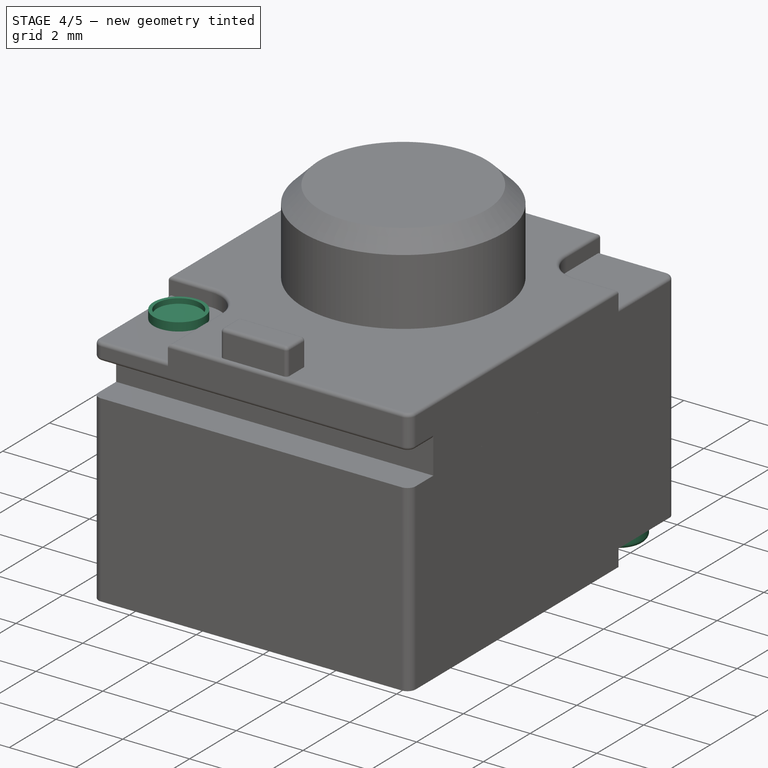
[diagram: stage 4 of 5 — iso view after this stage's code; geometry added in this stage tinted green]
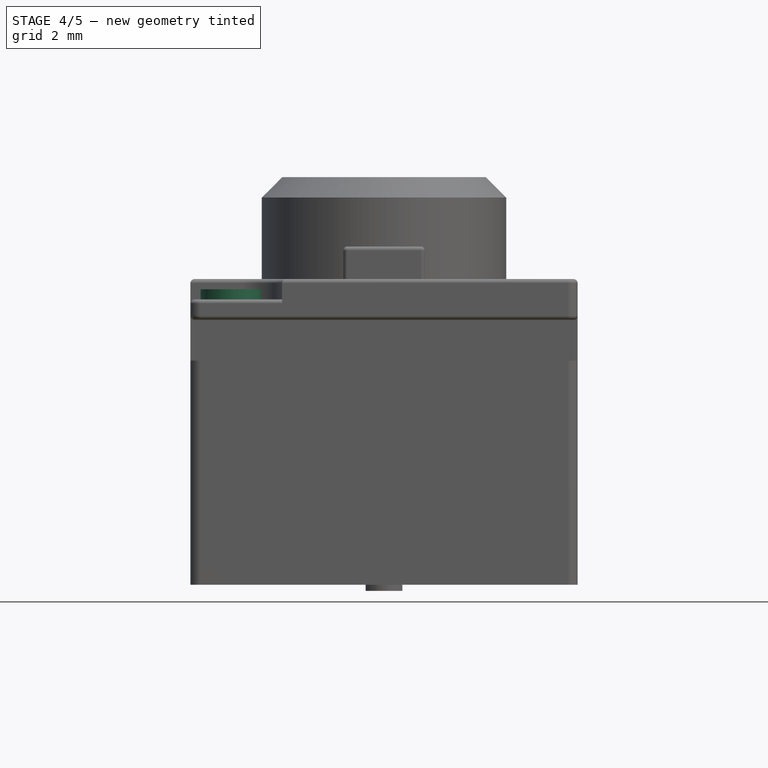
[diagram: stage 4 of 5 — front view after this stage's code; geometry added in this stage tinted green]
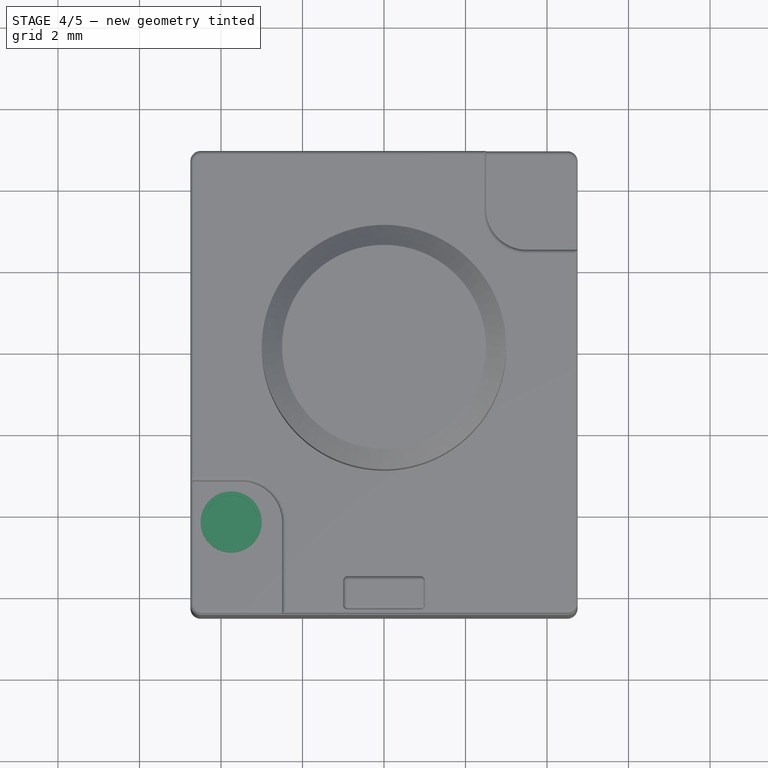
[diagram: stage 4 of 5 — top view after this stage's code; geometry added in this stage tinted green]
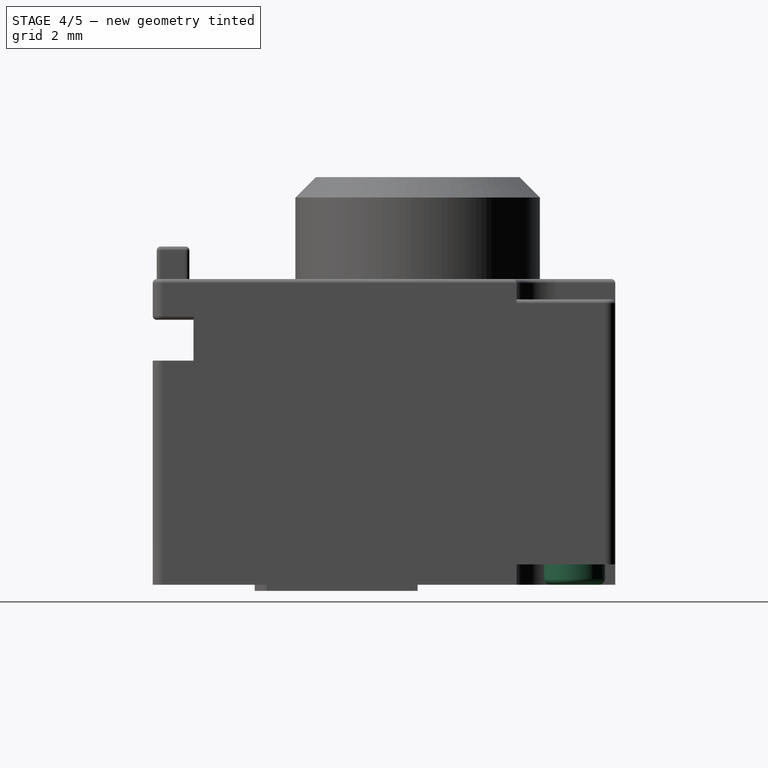
[diagram: stage 4 of 5 — right view after this stage's code; geometry added in this stage tinted green]
FEATURE [PartDesign::Body] Body004  label="Rivet_Top_1"
  Group = -> [Sketch010,Pad003,Thickness,Fillet,Fillet001]
  Origin = -> Origin004
  Tip = -> Fillet001
FEATURE [Sketcher::SketchObject] Sketch011
  AttachmentOffset = pos=(-3.75,-4.25,7) rot=(0,0,1;0rad)
  MapMode = 5
  Placement = pos=(-3.75,-4.25,7) rot=(0,0,1;0rad)
  Support = -> [XY_Plane005]
  sketch-geometry (1):
    g0: Circle CenterX=0 CenterY=0 CenterZ=0 NormalX=0 NormalY=0 NormalZ=1 AngleXU=0 Radius=0.75
  constraints (2):
    c: Radius(g0) = 0.75
    c: Coincident(g-1,g0)
FEATURE [PartDesign::Pad] Pad004
  Length = 0.25
  Length2 = 100
  Profile = -> Sketch011
  Type = 0
FEATURE [PartDesign::Thickness] Thickness001
  Base = -> Pad004 [Face3]
  BaseFeature = -> Pad004
  Join = 0
  Mode = 0
  Reversed = true
  Value = 0.1
FEATURE [PartDesign::Body] Body005  label="Rivet_Top_2"
  Group = -> [Sketch011,Pad004,Thickness001,Fillet002,Fillet003]
  Origin = -> Origin005
  Tip = -> Fillet003
FEATURE [Sketcher::SketchObject] Sketch012
  AttachmentOffset = pos=(3.75,3.85,0) rot=(0,0,1;1.5708rad)
  MapMode = 5
  Placement = pos=(3.75,3.85,0) rot=(0,0,1;1.5708rad)
  Support = -> [XY_Plane006]
  sketch-geometry (1):
    g0: Circle CenterX=0 CenterY=0 CenterZ=0 NormalX=0 NormalY=0 NormalZ=1 AngleXU=0 Radius=0.75
  constraints (2):
    c: Radius(g0) = 0.75
    c: Coincident(g0,g-1)
FEATURE [PartDesign::Pad] Pad005
  Length = 0.5
  Length2 = 100
  Profile = -> Sketch012
  Type = 0
FEATURE [PartDesign::Fillet] Fillet004
  Base = -> Pad005 [Edge2]
  BaseFeature = -> Pad005
  Radius = 0.15
FEATURE [PartDesign::Body] Body006  label="Rivet_Bot_1"
  Group = -> [Sketch012,Pad005,Fillet004]
  Origin = -> Origin006
  Tip = -> Fillet004
FEATURE [Sketcher::SketchObject] Sketch013
  AttachmentOffset = pos=(-3.75,-4.25,0) rot=(0,0,1;0rad)
  MapMode = 5
  Placement = pos=(-3.75,-4.25,0) rot=(0,0,1;0rad)
  Support = -> [XY_Plane007]
  sketch-geometry (1):
    g0: Circle CenterX=0 CenterY=0 CenterZ=0 NormalX=0 NormalY=0 NormalZ=1 AngleXU=0 Radius=0.75
  constraints (2):
    c: Coincident(g0,g-1)
    c: Radius(g0) = 0.75
FEATURE [PartDesign::Pad] Pad006
  Length = 0.5
  Length2 = 100
  Profile = -> Sketch013
  Type = 0
FEATURE [PartDesign::Fillet] Fillet005
  Base = -> Pad006 [Edge2]
  BaseFeature = -> Pad006
  Radius = 0.15
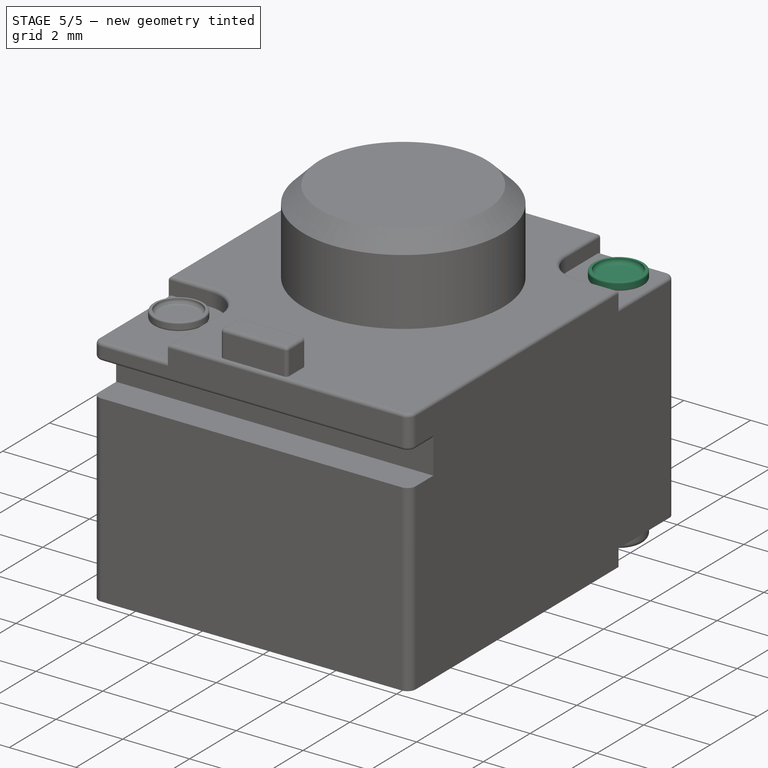
[diagram: stage 5 of 5 — iso view after this stage's code; geometry added in this stage tinted green]
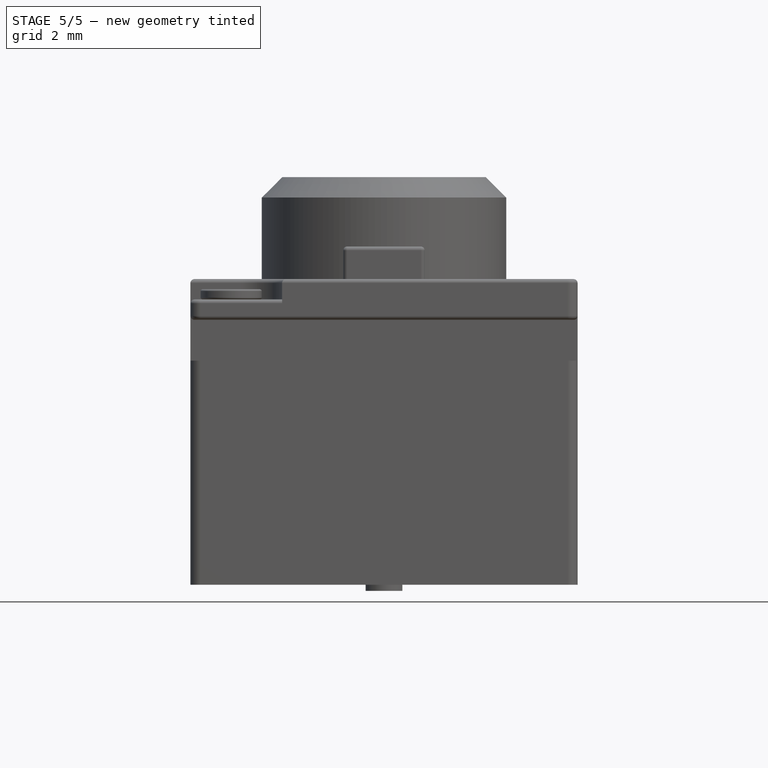
[diagram: stage 5 of 5 — front view after this stage's code; geometry added in this stage tinted green]
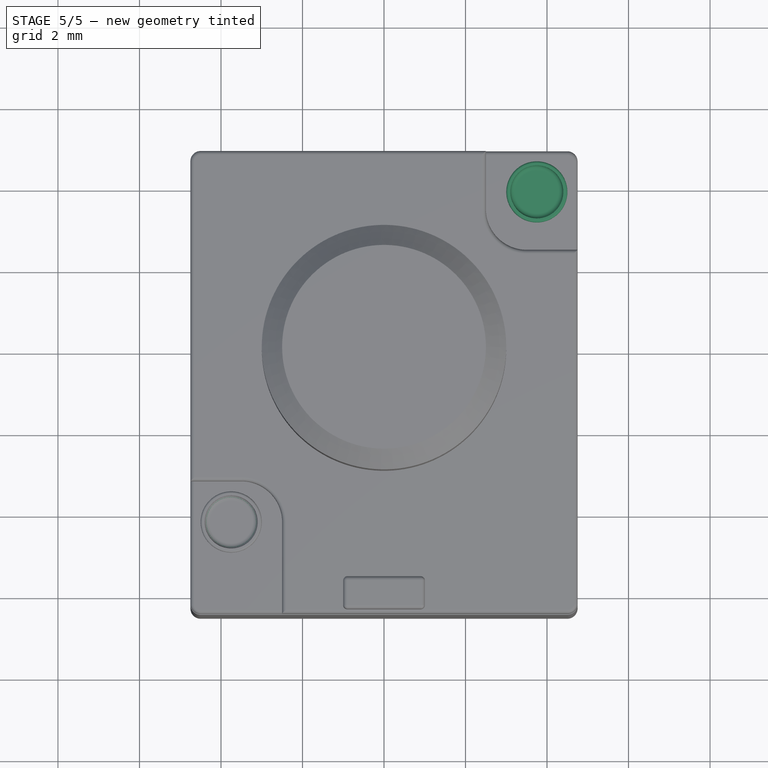
[diagram: stage 5 of 5 — top view after this stage's code; geometry added in this stage tinted green]
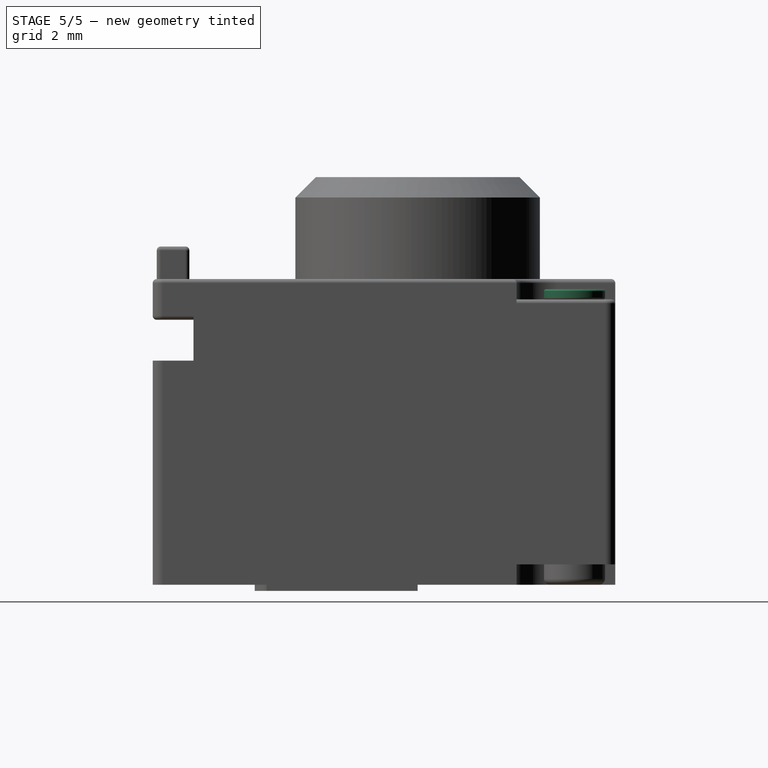
[diagram: stage 5 of 5 — right view after this stage's code; geometry added in this stage tinted green]
FEATURE [Sketcher::SketchObject] Sketch010
  AttachmentOffset = pos=(3.75,3.85,7) rot=(0,0,1;1.5708rad)
  MapMode = 5
  Placement = pos=(3.75,3.85,7) rot=(0,0,1;1.5708rad)
  Support = -> [XY_Plane004]
  sketch-geometry (1):
    g0: Circle CenterX=0 CenterY=0 CenterZ=0 NormalX=0 NormalY=0 NormalZ=1 AngleXU=0 Radius=0.75
  constraints (2):
    c: Coincident(g0,g-1)
    c: Radius(g0) = 0.75
FEATURE [PartDesign::Pad] Pad003
  Length = 0.25
  Length2 = 100
  Profile = -> Sketch010
  Type = 0
FEATURE [PartDesign::Thickness] Thickness
  Base = -> Pad003 [Face3]
  BaseFeature = -> Pad003
  Join = 0
  Mode = 0
  Reversed = true
  Value = 0.1
FEATURE [PartDesign::Fillet] Fillet
  Base = -> Thickness [Edge6]
  BaseFeature = -> Thickness
  Radius = 0.125
FEATURE [PartDesign::Fillet] Fillet001
  Base = -> Fillet [Edge6,Edge8]
  BaseFeature = -> Fillet
  Radius = 0.05
FEATURE [PartDesign::Fillet] Fillet002
  Base = -> Thickness001 [Edge6]
  BaseFeature = -> Thickness001
  Radius = 0.13
FEATURE [PartDesign::Fillet] Fillet003
  Base = -> Fillet002 [Edge8,Edge6]
  BaseFeature = -> Fillet002
  Radius = 0.05
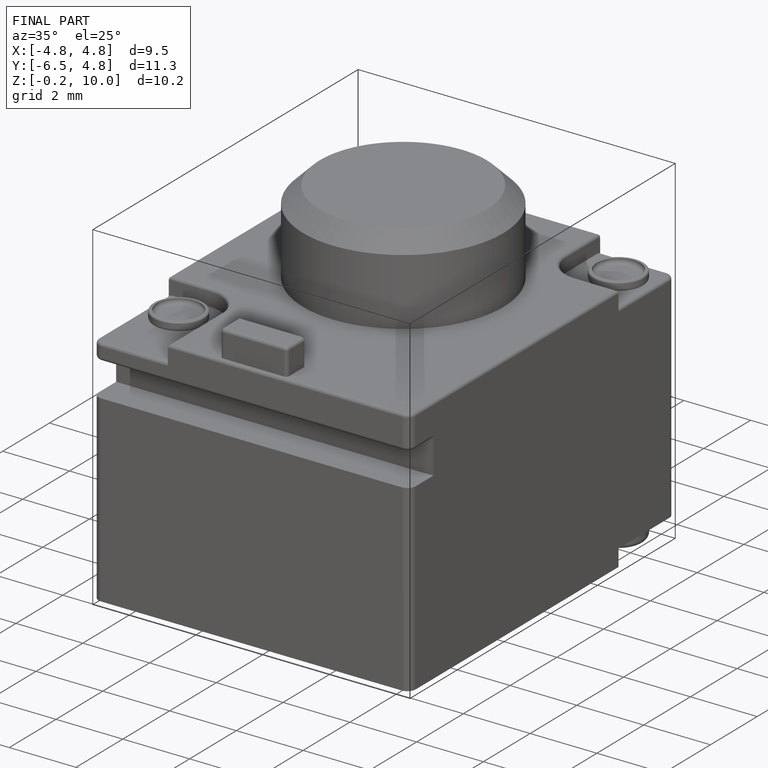
[diagram: finished part — iso view with bounding-box wireframe]
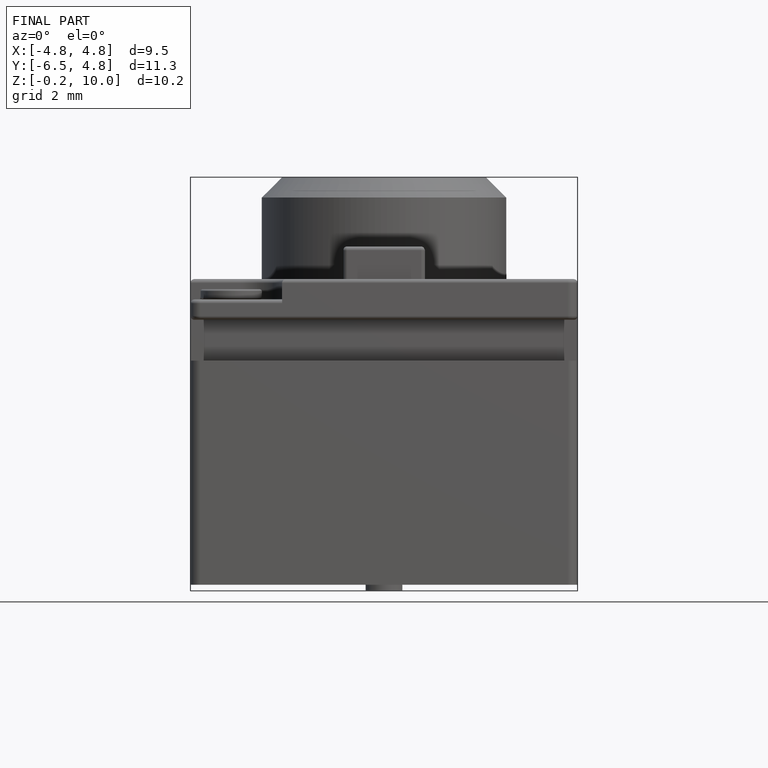
[diagram: finished part — front view with bounding-box wireframe]
